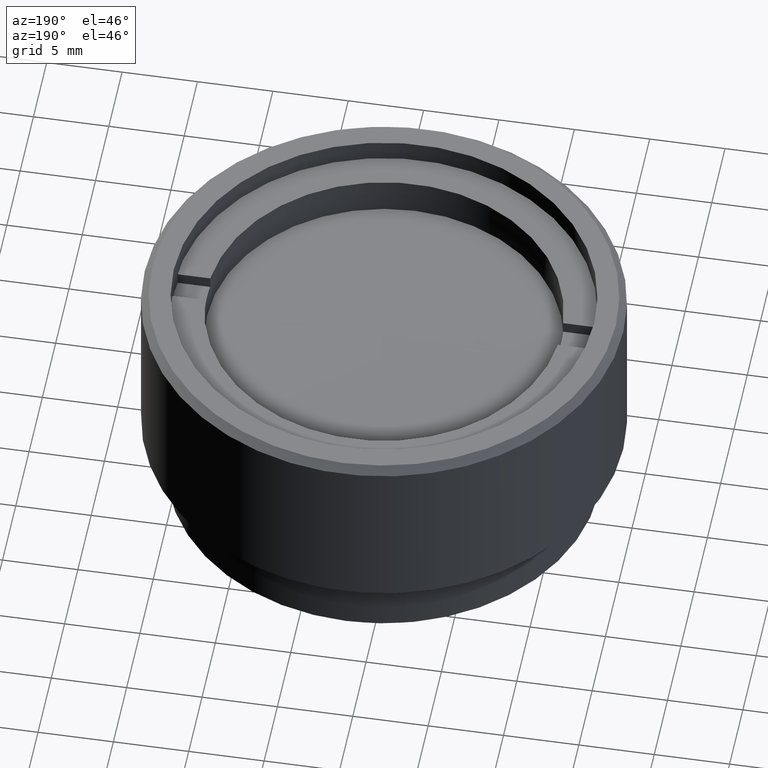
[diagram: clean part render]
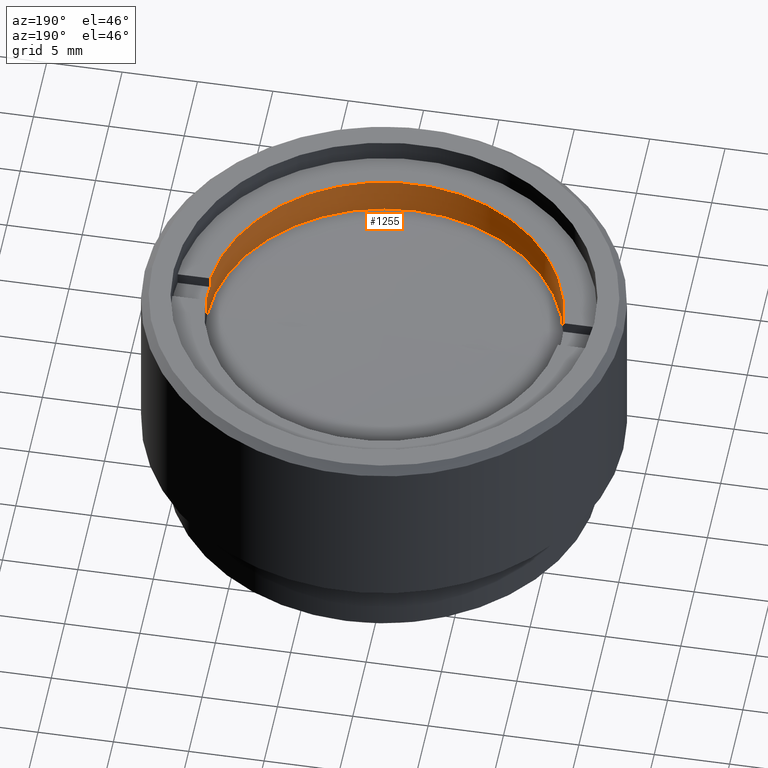
[diagram: same view with one face highlighted and labeled with its STEP entity id]
A machine part, auxiliary view. The second image highlights one B-rep face of the part: STEP entity #1255.
In plain terms, the highlighted cylindrical surface (partial cylindrical patch) has radius 11.75 mm, axis along (-0, -0, -1).
Its self-contained STEP definition (entity closure, byte-faithful):
#5 = DIRECTION ( 'NONE',  ( -0.000000000000000000, -0.000000000000000000, -1.000000000000000000 ) ) ;
#34 = ORIENTED_EDGE ( 'NONE', *, *, #501, .T. ) ;
#57 = DIRECTION ( 'NONE',  ( -0.000000000000000000, -0.000000000000000000, -1.000000000000000000 ) ) ;
#68 = VERTEX_POINT ( 'NONE', #836 ) ;
#91 = CARTESIAN_POINT ( 'NONE',  ( 0.000000000000000000, 0.000000000000000000, 0.000000000000000000 ) ) ;
#134 = VERTEX_POINT ( 'NONE', #1373 ) ;
#188 = ORIENTED_EDGE ( 'NONE', *, *, #554, .T. ) ;
#249 = DIRECTION ( 'NONE',  ( -1.000000000000000000, 0.000000000000000000, 0.000000000000000000 ) ) ;
#283 = LINE ( 'NONE', #1629, #1501 ) ;
#298 = CARTESIAN_POINT ( 'NONE',  ( 0.000000000000000000, 0.000000000000000000, 2.500000000000000000 ) ) ;
#299 = CARTESIAN_POINT ( 'NONE',  ( 11.70736947396809668, -1.000000000000000000, 1.700000000000000178 ) ) ;
#372 = AXIS2_PLACEMENT_3D ( 'NONE', #298, #604, #837 ) ;
#379 = CARTESIAN_POINT ( 'NONE',  ( 11.75000000000000178, 1.438959988998140357E-15, 0.000000000000000000 ) ) ;
#396 = CIRCLE ( 'NONE', #372, 11.75000000000000178 ) ;
#424 = VERTEX_POINT ( 'NONE', #1219 ) ;
#440 = DIRECTION ( 'NONE',  ( -0.000000000000000000, -0.000000000000000000, -1.000000000000000000 ) ) ;
#448 = CARTESIAN_POINT ( 'NONE',  ( 11.75000000000000178, 1.438959988998140357E-15, 2.500000000000000000 ) ) ;
#460 = CIRCLE ( 'NONE', #1676, 11.75000000000000178 ) ;
#482 = AXIS2_PLACEMENT_3D ( 'NONE', #1382, #985, #851 ) ;
#486 = CARTESIAN_POINT ( 'NONE',  ( -11.75000000000000178, 0.000000000000000000, 2.500000000000000000 ) ) ;
#501 = EDGE_CURVE ( 'NONE', #1115, #1168, #460, .T. ) ;
#506 = DIRECTION ( 'NONE',  ( -0.000000000000000000, -0.000000000000000000, -1.000000000000000000 ) ) ;
#554 = EDGE_CURVE ( 'NONE', #1657, #68, #396, .T. ) ;
#559 = EDGE_LOOP ( 'NONE', ( #1624, #779, #1640, #1214, #34, #687, #188, #947 ) ) ;
#604 = DIRECTION ( 'NONE',  ( 0.000000000000000000, 0.000000000000000000, 1.000000000000000000 ) ) ;
#621 = LINE ( 'NONE', #486, #894 ) ;
#625 = AXIS2_PLACEMENT_3D ( 'NONE', #91, #1419, #1038 ) ;
#630 = VECTOR ( 'NONE', #57, 1000.000000000000000 ) ;
#633 = CARTESIAN_POINT ( 'NONE',  ( -11.75000000000000178, 0.000000000000000000, 1.700000000000000178 ) ) ;
#649 = EDGE_CURVE ( 'NONE', #134, #727, #702, .T. ) ;
#652 = CARTESIAN_POINT ( 'NONE',  ( -11.70736947396809668, -1.000000000000000000, 2.500000000000000000 ) ) ;
#687 = ORIENTED_EDGE ( 'NONE', *, *, #1402, .F. ) ;
#702 = CIRCLE ( 'NONE', #625, 11.75000000000000178 ) ;
#727 = VERTEX_POINT ( 'NONE', #379 ) ;
#763 = VECTOR ( 'NONE', #1433, 1000.000000000000000 ) ;
#779 = ORIENTED_EDGE ( 'NONE', *, *, #1392, .T. ) ;
#836 = CARTESIAN_POINT ( 'NONE',  ( 11.70736947396809668, -1.000000000000000000, 2.500000000000000000 ) ) ;
#837 = DIRECTION ( 'NONE',  ( 1.000000000000000000, 0.000000000000000000, 0.000000000000000000 ) ) ;
#851 = DIRECTION ( 'NONE',  ( 1.000000000000000000, 0.000000000000000000, 0.000000000000000000 ) ) ;
#894 = VECTOR ( 'NONE', #506, 1000.000000000000000 ) ;
#947 = ORIENTED_EDGE ( 'NONE', *, *, #1549, .F. ) ;
#985 = DIRECTION ( 'NONE',  ( -0.000000000000000000, 0.000000000000000000, 1.000000000000000000 ) ) ;
#1038 = DIRECTION ( 'NONE',  ( 1.000000000000000000, 0.000000000000000000, 0.000000000000000000 ) ) ;
#1115 = VERTEX_POINT ( 'NONE', #633 ) ;
#1121 = LINE ( 'NONE', #448, #630 ) ;
#1158 = CIRCLE ( 'NONE', #482, 11.75000000000000178 ) ;
#1168 = VERTEX_POINT ( 'NONE', #1679 ) ;
#1192 = EDGE_CURVE ( 'NONE', #1115, #134, #621, .T. ) ;
#1208 = AXIS2_PLACEMENT_3D ( 'NONE', #1526, #5, #249 ) ;
#1214 = ORIENTED_EDGE ( 'NONE', *, *, #1192, .F. ) ;
#1219 = CARTESIAN_POINT ( 'NONE',  ( 11.75000000000000178, 1.438959988998140357E-15, 1.700000000000000178 ) ) ;
#1255 = ADVANCED_FACE ( 'NONE', ( #1305 ), #1653, .F. ) ;
#1305 = FACE_OUTER_BOUND ( 'NONE', #559, .T. ) ;
#1345 = EDGE_CURVE ( 'NONE', #1460, #424, #1158, .T. ) ;
#1373 = CARTESIAN_POINT ( 'NONE',  ( -11.75000000000000178, 0.000000000000000000, 0.000000000000000000 ) ) ;
#1382 = CARTESIAN_POINT ( 'NONE',  ( 0.000000000000000000, 0.000000000000000000, 1.700000000000000178 ) ) ;
#1383 = DIRECTION ( 'NONE',  ( -0.000000000000000000, 0.000000000000000000, 1.000000000000000000 ) ) ;
#1392 = EDGE_CURVE ( 'NONE', #424, #727, #1121, .T. ) ;
#1402 = EDGE_CURVE ( 'NONE', #1657, #1168, #283, .T. ) ;
#1419 = DIRECTION ( 'NONE',  ( 0.000000000000000000, 0.000000000000000000, 1.000000000000000000 ) ) ;
#1433 = DIRECTION ( 'NONE',  ( 0.000000000000000000, 0.000000000000000000, 1.000000000000000000 ) ) ;
#1460 = VERTEX_POINT ( 'NONE', #299 ) ;
#1501 = VECTOR ( 'NONE', #440, 1000.000000000000000 ) ;
#1518 = DIRECTION ( 'NONE',  ( 1.000000000000000000, 0.000000000000000000, 0.000000000000000000 ) ) ;
#1526 = CARTESIAN_POINT ( 'NONE',  ( 0.000000000000000000, 0.000000000000000000, 2.500000000000000000 ) ) ;
#1538 = LINE ( 'NONE', #1673, #763 ) ;
#1549 = EDGE_CURVE ( 'NONE', #1460, #68, #1538, .T. ) ;
#1624 = ORIENTED_EDGE ( 'NONE', *, *, #1345, .T. ) ;
#1629 = CARTESIAN_POINT ( 'NONE',  ( -11.70736947396809668, -1.000000000000000000, 2.500000000000000000 ) ) ;
#1635 = CARTESIAN_POINT ( 'NONE',  ( 0.000000000000000000, 0.000000000000000000, 1.700000000000000178 ) ) ;
#1640 = ORIENTED_EDGE ( 'NONE', *, *, #649, .F. ) ;
#1653 = CYLINDRICAL_SURFACE ( 'NONE', #1208, 11.75000000000000178 ) ;
#1657 = VERTEX_POINT ( 'NONE', #652 ) ;
#1673 = CARTESIAN_POINT ( 'NONE',  ( 11.70736947396809668, -1.000000000000000000, 2.500000000000000000 ) ) ;
#1676 = AXIS2_PLACEMENT_3D ( 'NONE', #1635, #1383, #1518 ) ;
#1679 = CARTESIAN_POINT ( 'NONE',  ( -11.70736947396809668, -1.000000000000000000, 1.700000000000000178 ) ) ;